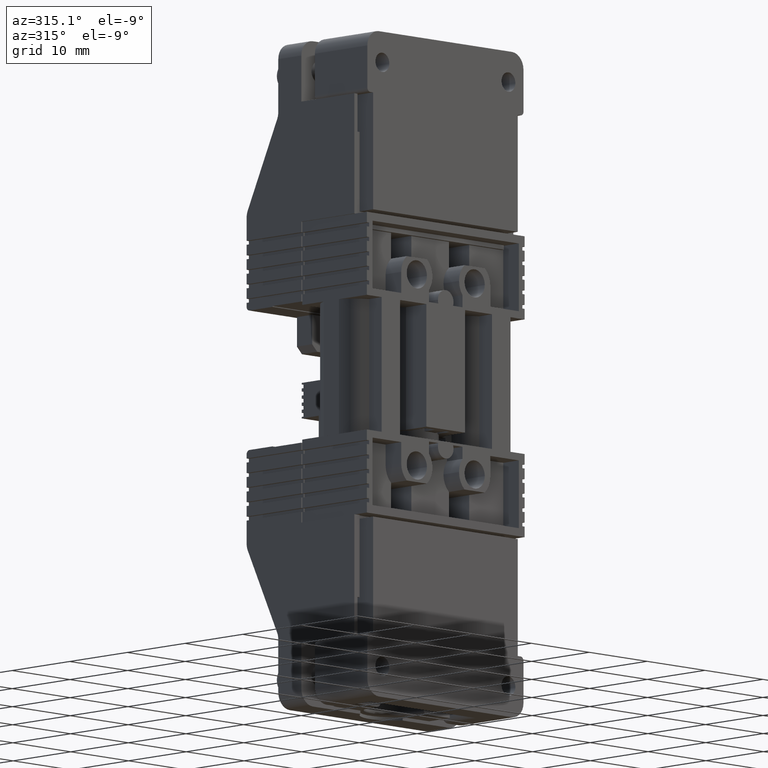
[diagram: clean part render]
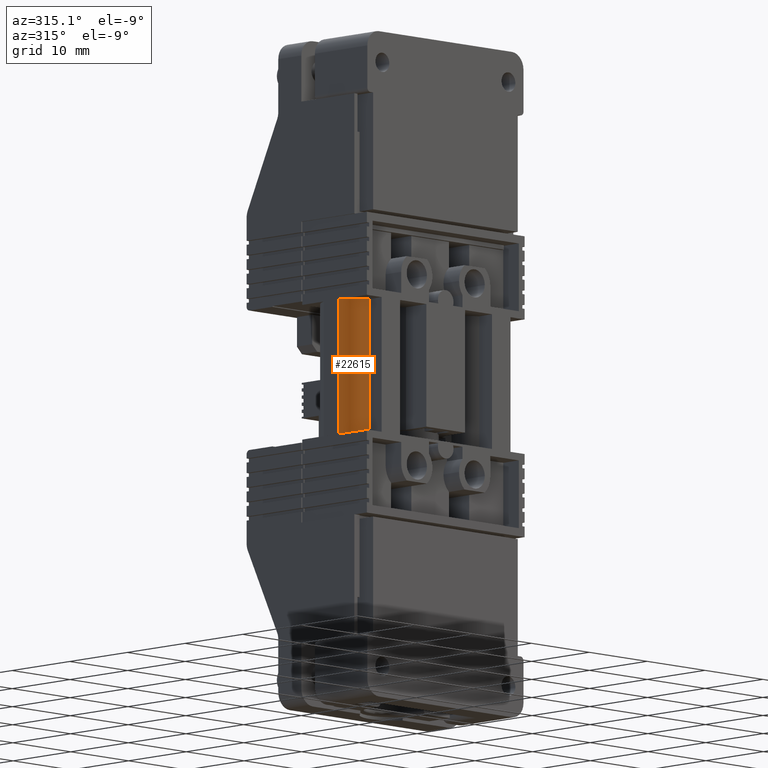
[diagram: same view with one face highlighted and labeled with its STEP entity id]
A machine part, auxiliary view. The second image highlights one B-rep face of the part: STEP entity #22615.
In plain terms, the highlighted cylindrical surface (edge-blend (fillet) strip) has radius 4.25 mm, axis along (0, -0, 1).
Its self-contained STEP definition (entity closure, byte-faithful):
#4915 = EDGE_CURVE ( 'NONE', #21779, #21798, #9303, .T. ) ;
#4964 = EDGE_CURVE ( 'NONE', #26831, #26870, #8134, .T. ) ;
#5001 = EDGE_CURVE ( 'NONE', #21798, #26831, #29944, .T. ) ;
#5104 = EDGE_CURVE ( 'NONE', #26870, #26913, #8357, .T. ) ;
#5166 = EDGE_CURVE ( 'NONE', #26944, #21779, #8382, .T. ) ;
#5175 = EDGE_CURVE ( 'NONE', #26944, #26913, #10755, .T. ) ;
#5697 = EDGE_LOOP ( 'NONE', ( #18284, #18275, #18337, #18389, #18379, #18288 ) ) ;
#8134 = CIRCLE ( 'NONE', #8135, 4.250000000000004400 ) ;
#8135 = AXIS2_PLACEMENT_3D ( 'NONE', #29862, #29869, #29886 ) ;
#8171 = VECTOR ( 'NONE', #29950, 1000.000000000000000 ) ;
#8353 = AXIS2_PLACEMENT_3D ( 'NONE', #30296, #30278, #30298 ) ;
#8357 = CIRCLE ( 'NONE', #8353, 4.250000000000004400 ) ;
#8382 = CIRCLE ( 'NONE', #8383, 4.250000000000004400 ) ;
#8383 = AXIS2_PLACEMENT_3D ( 'NONE', #10739, #10727, #10716 ) ;
#8431 = VECTOR ( 'NONE', #10779, 1000.000000000000000 ) ;
#9271 = AXIS2_PLACEMENT_3D ( 'NONE', #29727, #29752, #29739 ) ;
#9303 = CIRCLE ( 'NONE', #9271, 4.250000000000004400 ) ;
#10716 = DIRECTION ( 'NONE',  ( 1.000000000000000000, 8.163404592832025100E-016, -3.044949913126345300E-013 ) ) ;
#10727 = DIRECTION ( 'NONE',  ( -3.043382355014360500E-013, 1.443289932012703700E-015, -1.000000000000000000 ) ) ;
#10739 = CARTESIAN_POINT ( 'NONE',  ( 4.205466006791487700, -5.049999999999967000, 17.29999999999875000 ) ) ;
#10755 = LINE ( 'NONE', #10794, #8431 ) ;
#10779 = DIRECTION ( 'NONE',  ( -3.043382355014360500E-013, -0.0000000000000000000, -1.000000000000000000 ) ) ;
#10794 = CARTESIAN_POINT ( 'NONE',  ( 2.728542929869811400, -9.035122109152061000, 21.02336003231279100 ) ) ;
#10963 = CARTESIAN_POINT ( 'NONE',  ( 0.1554660067866037700, -6.338409872673098600, 0.5999999999999677800 ) ) ;
#11066 = CARTESIAN_POINT ( 'NONE',  ( 0.1638538461511100100, -6.364485124680000700, 0.5999999999999599000 ) ) ;
#11136 = CARTESIAN_POINT ( 'NONE',  ( 2.728542929868684700, -9.035122109152064600, 17.29999999999920100 ) ) ;
#11137 = CARTESIAN_POINT ( 'NONE',  ( 2.728542929863595900, -9.035122109152052200, 0.5999999999991630900 ) ) ;
#14710 = AXIS2_PLACEMENT_3D ( 'NONE', #21193, #21151, #21175 ) ;
#18275 = ORIENTED_EDGE ( 'NONE', *, *, #5001, .T. ) ;
#18284 = ORIENTED_EDGE ( 'NONE', *, *, #4915, .T. ) ;
#18288 = ORIENTED_EDGE ( 'NONE', *, *, #5166, .T. ) ;
#18337 = ORIENTED_EDGE ( 'NONE', *, *, #4964, .T. ) ;
#18379 = ORIENTED_EDGE ( 'NONE', *, *, #5175, .F. ) ;
#18389 = ORIENTED_EDGE ( 'NONE', *, *, #5104, .T. ) ;
#20472 = CARTESIAN_POINT ( 'NONE',  ( 0.1638538461523935100, -6.364485124668267000, 17.29999999999999000 ) ) ;
#20506 = CARTESIAN_POINT ( 'NONE',  ( 0.1554660067917181300, -6.338409872673211400, 17.29999999999999000 ) ) ;
#21150 = FACE_OUTER_BOUND ( 'NONE', #5697, .T. ) ;
#21151 = DIRECTION ( 'NONE',  ( 3.043382355014360500E-013, -1.443289932012703700E-015, 1.000000000000000000 ) ) ;
#21175 = DIRECTION ( 'NONE',  ( 1.000000000000000000, 0.0000000000000000000, -3.043419274765188700E-013 ) ) ;
#21180 = CYLINDRICAL_SURFACE ( 'NONE', #14710, 4.250000000000005300 ) ;
#21193 = CARTESIAN_POINT ( 'NONE',  ( 4.205466006786314100, -5.049999999999943000, 0.2999999999987327200 ) ) ;
#21779 = VERTEX_POINT ( 'NONE', #20472 ) ;
#21798 = VERTEX_POINT ( 'NONE', #20506 ) ;
#22615 = ADVANCED_FACE ( 'NONE', ( #21150 ), #21180, .T. ) ;
#26831 = VERTEX_POINT ( 'NONE', #10963 ) ;
#26870 = VERTEX_POINT ( 'NONE', #11066 ) ;
#26913 = VERTEX_POINT ( 'NONE', #11137 ) ;
#26944 = VERTEX_POINT ( 'NONE', #11136 ) ;
#29727 = CARTESIAN_POINT ( 'NONE',  ( 4.205466006791487700, -5.049999999999967000, 17.29999999999876800 ) ) ;
#29739 = DIRECTION ( 'NONE',  ( 1.000000000000000000, -1.953094548835062000E-013, -3.044949913126345300E-013 ) ) ;
#29752 = DIRECTION ( 'NONE',  ( -3.043382355014360500E-013, 1.443289932012703700E-015, -1.000000000000000000 ) ) ;
#29862 = CARTESIAN_POINT ( 'NONE',  ( 4.205466006786405600, -5.049999999999943000, 0.5999999999987369900 ) ) ;
#29869 = DIRECTION ( 'NONE',  ( 3.043382355014360500E-013, -1.443289932012703700E-015, 1.000000000000000000 ) ) ;
#29886 = DIRECTION ( 'NONE',  ( 1.000000000000000000, 0.0000000000000000000, -3.043419274765189200E-013 ) ) ;
#29944 = LINE ( 'NONE', #29975, #8171 ) ;
#29950 = DIRECTION ( 'NONE',  ( -3.043382355014360500E-013, 1.443289932012703700E-015, -1.000000000000000000 ) ) ;
#29975 = CARTESIAN_POINT ( 'NONE',  ( 0.1554660067865339400, -6.338409872673165200, 0.2999999999999634600 ) ) ;
#30278 = DIRECTION ( 'NONE',  ( 3.043382355014360500E-013, -1.443289932012703700E-015, 1.000000000000000000 ) ) ;
#30296 = CARTESIAN_POINT ( 'NONE',  ( 4.205466006786405600, -5.049999999999943000, 0.5999999999987247800 ) ) ;
#30298 = DIRECTION ( 'NONE',  ( 1.000000000000000000, 0.0000000000000000000, -3.043419274765189200E-013 ) ) ;